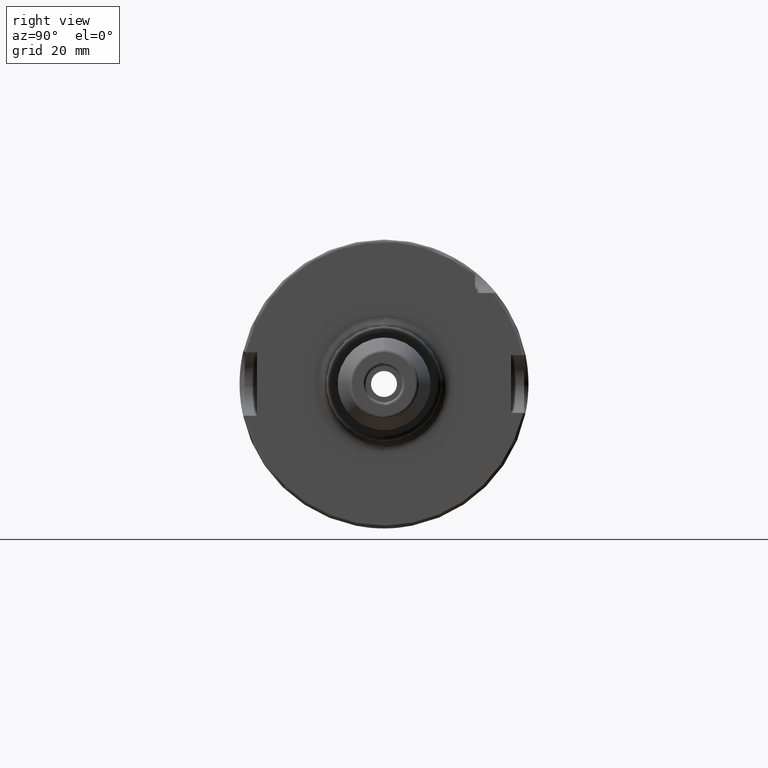
[diagram: clean part render]
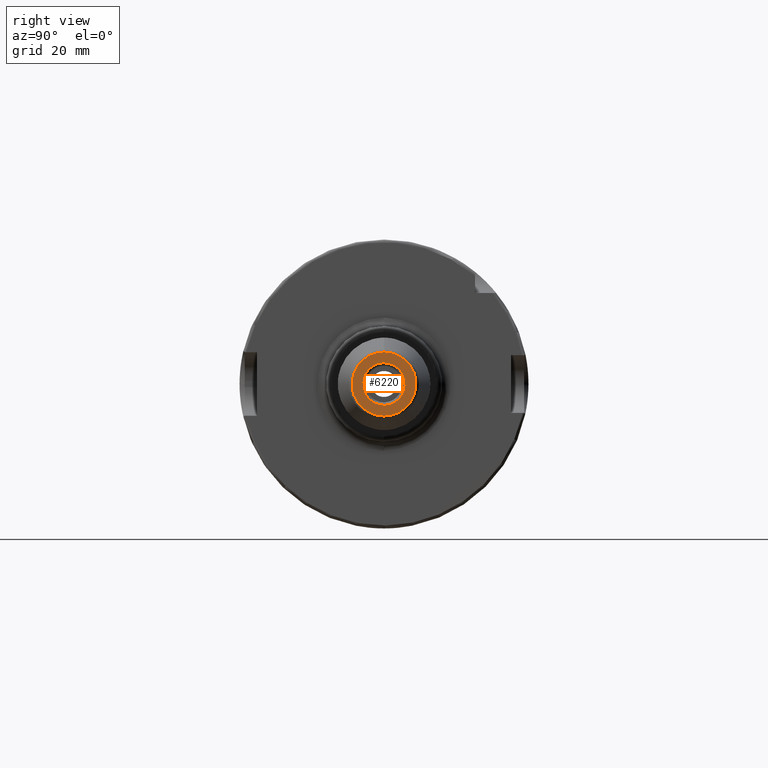
[diagram: same view with one face highlighted and labeled with its STEP entity id]
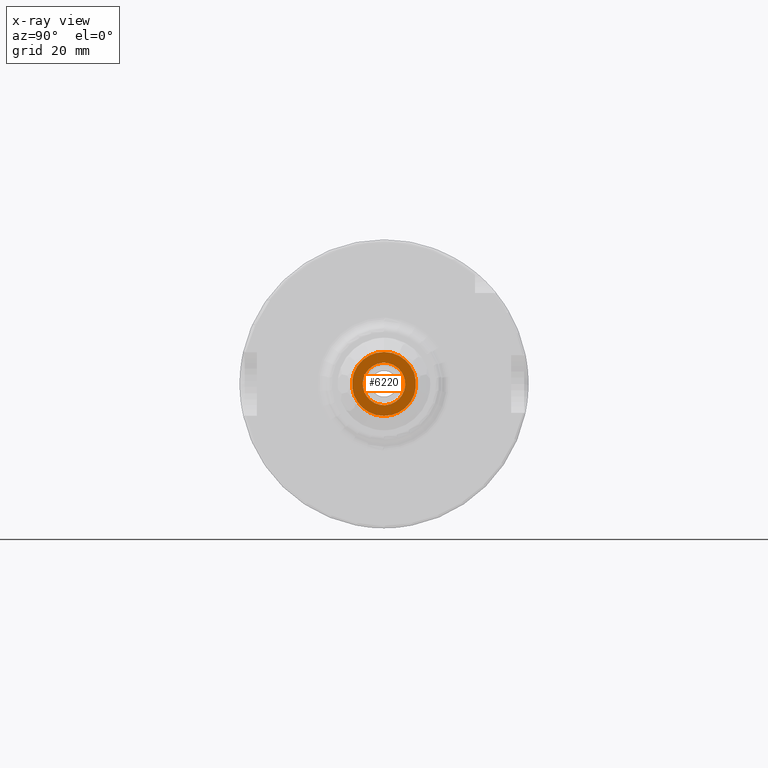
[diagram: x-ray of the same camera — body ghosted, the highlighted face saturated]
A machine part, right view. The second image highlights one B-rep face of the part: STEP entity #6220.
The next image is the same camera in x-ray: the body ghosted, the highlighted face saturated — about 0% of this face is hidden behind the body in this view.
In plain terms, the highlighted planar face has unit normal (1, 0, 0).
Its self-contained STEP definition (entity closure, byte-faithful):
#2433=CARTESIAN_POINT('',(1.6E2,0.E0,0.E0));
#2434=DIRECTION('',(-1.E0,0.E0,0.E0));
#2435=DIRECTION('',(0.E0,0.E0,-1.E0));
#2436=AXIS2_PLACEMENT_3D('',#2433,#2434,#2435);
#2438=CARTESIAN_POINT('',(1.6E2,0.E0,0.E0));
#2439=DIRECTION('',(-1.E0,0.E0,0.E0));
#2440=DIRECTION('',(0.E0,0.E0,1.E0));
#2441=AXIS2_PLACEMENT_3D('',#2438,#2439,#2440);
#2443=CARTESIAN_POINT('',(1.6E2,0.E0,0.E0));
#2444=DIRECTION('',(1.E0,0.E0,0.E0));
#2445=DIRECTION('',(0.E0,0.E0,-1.E0));
#2446=AXIS2_PLACEMENT_3D('',#2443,#2444,#2445);
#2448=CARTESIAN_POINT('',(1.6E2,0.E0,0.E0));
#2449=DIRECTION('',(1.E0,0.E0,0.E0));
#2450=DIRECTION('',(0.E0,8.718302388177E-2,-9.961923109254E-1));
#2451=AXIS2_PLACEMENT_3D('',#2448,#2449,#2450);
#2453=CARTESIAN_POINT('',(1.6E2,0.E0,0.E0));
#2454=DIRECTION('',(1.E0,0.E0,0.E0));
#2455=DIRECTION('',(0.E0,0.E0,1.E0));
#2456=AXIS2_PLACEMENT_3D('',#2453,#2454,#2455);
#2458=CARTESIAN_POINT('',(1.6E2,0.E0,0.E0));
#2459=DIRECTION('',(1.E0,0.E0,0.E0));
#2460=DIRECTION('',(0.E0,-8.718302388177E-2,9.961923109254E-1));
#2461=AXIS2_PLACEMENT_3D('',#2458,#2459,#2460);
#3466=CARTESIAN_POINT('',(1.6E2,0.E0,-1.107560950834E1));
#3467=VERTEX_POINT('',#3466);
#3468=CARTESIAN_POINT('',(1.6E2,0.E0,1.107560950834E1));
#3469=VERTEX_POINT('',#3468);
#3470=CARTESIAN_POINT('',(1.6E2,6.407952255310E-1,-7.322013485301E0));
#3471=CARTESIAN_POINT('',(1.6E2,0.E0,7.35E0));
#3472=VERTEX_POINT('',#3470);
#3473=VERTEX_POINT('',#3471);
#3474=CARTESIAN_POINT('',(1.6E2,0.E0,-7.35E0));
#3475=VERTEX_POINT('',#3474);
#3476=CARTESIAN_POINT('',(1.6E2,-6.407952255310E-1,7.322013485301E0));
#3477=VERTEX_POINT('',#3476);
#6201=CARTESIAN_POINT('',(1.6E2,0.E0,0.E0));
#6202=DIRECTION('',(1.E0,0.E0,0.E0));
#6203=DIRECTION('',(0.E0,0.E0,1.E0));
#6204=AXIS2_PLACEMENT_3D('',#6201,#6202,#6203);
#6205=PLANE('',#6204);
#6206=ORIENTED_EDGE('',*,*,#6196,.T.);
#6207=ORIENTED_EDGE('',*,*,#6180,.T.);
#6208=EDGE_LOOP('',(#6206,#6207));
#6209=FACE_OUTER_BOUND('',#6208,.F.);
#6211=ORIENTED_EDGE('',*,*,#6210,.T.);
#6213=ORIENTED_EDGE('',*,*,#6212,.T.);
#6215=ORIENTED_EDGE('',*,*,#6214,.T.);
#6217=ORIENTED_EDGE('',*,*,#6216,.T.);
#6218=EDGE_LOOP('',(#6211,#6213,#6215,#6217));
#6219=FACE_BOUND('',#6218,.F.);
#6220=ADVANCED_FACE('',(#6209,#6219),#6205,.T.);
#2437=CIRCLE('',#2436,1.107560950834E1);
#2442=CIRCLE('',#2441,1.107560950834E1);
#2447=CIRCLE('',#2446,7.35E0);
#2452=CIRCLE('',#2451,7.35E0);
#2457=CIRCLE('',#2456,7.35E0);
#2462=CIRCLE('',#2461,7.35E0);
#6180=EDGE_CURVE('',#3469,#3467,#2442,.T.);
#6196=EDGE_CURVE('',#3467,#3469,#2437,.T.);
#6210=EDGE_CURVE('',#3475,#3472,#2447,.T.);
#6212=EDGE_CURVE('',#3472,#3473,#2452,.T.);
#6214=EDGE_CURVE('',#3473,#3477,#2457,.T.);
#6216=EDGE_CURVE('',#3477,#3475,#2462,.T.);